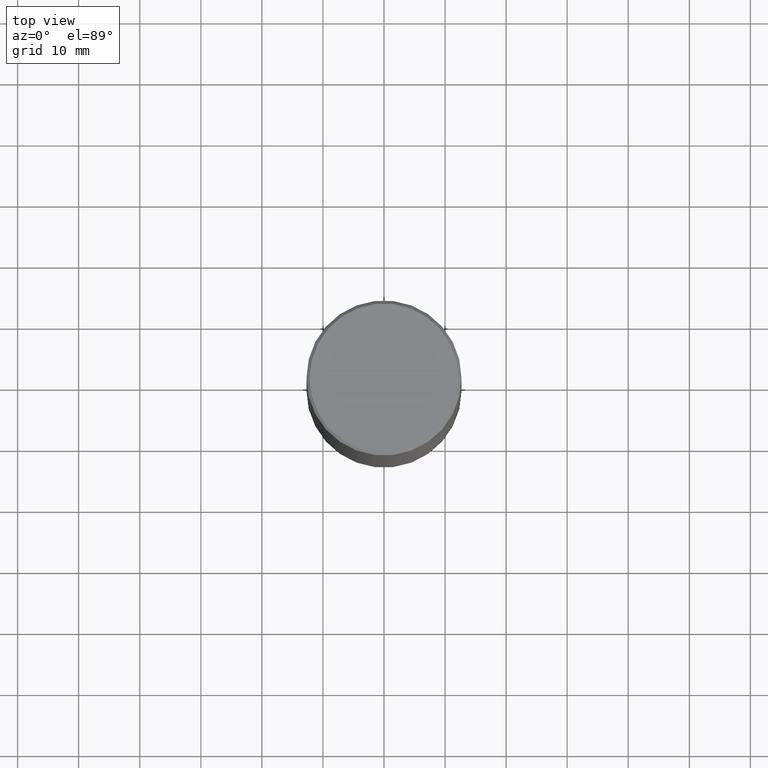
[diagram: clean part render]
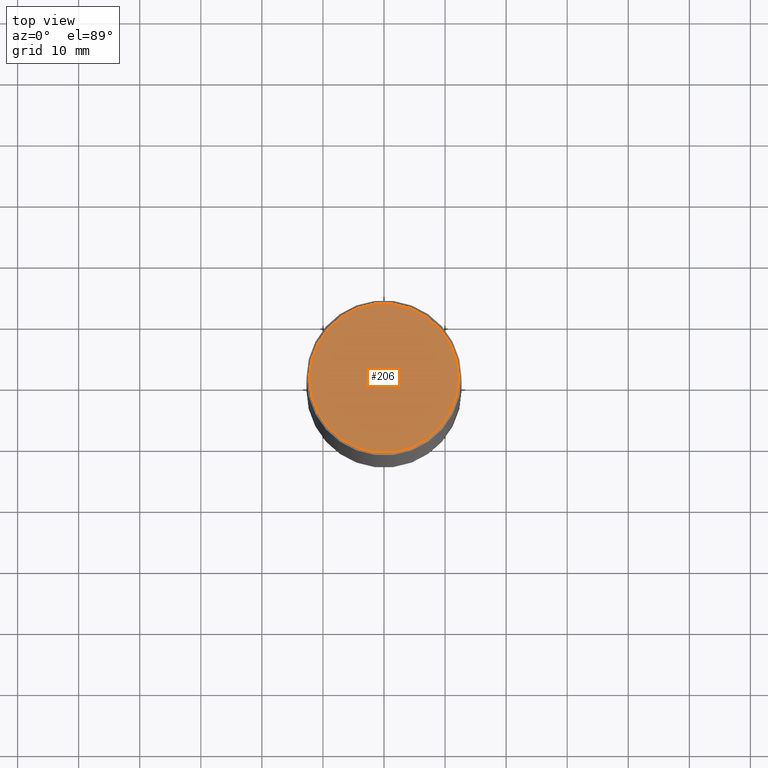
[diagram: same view with one face highlighted and labeled with its STEP entity id]
A machine part, top view. The second image highlights one B-rep face of the part: STEP entity #206.
In plain terms, the highlighted planar face has unit normal (0, -0, -1).
Its self-contained STEP definition (entity closure, byte-faithful):
#12 = EDGE_LOOP ( 'NONE', ( #17, #357 ) ) ;
#16 = CARTESIAN_POINT ( 'NONE',  ( -0.4799999999999996492, 3.386736898677836436E-15, 1.280553747027767124E-17 ) ) ;
#17 = ORIENTED_EDGE ( 'NONE', *, *, #171, .T. ) ;
#100 = CARTESIAN_POINT ( 'NONE',  ( -3.131554243005659264E-46, 4.471029511141341874E-32, 1.280553747030123384E-17 ) ) ;
#118 = EDGE_CURVE ( 'NONE', #148, #193, #354, .T. ) ;
#131 = CARTESIAN_POINT ( 'NONE',  ( -3.131554243005659264E-46, 4.471029511141341874E-32, 1.280553747030123384E-17 ) ) ;
#148 = VERTEX_POINT ( 'NONE', #326 ) ;
#163 = CIRCLE ( 'NONE', #250, 0.4799999999999996492 ) ;
#171 = EDGE_CURVE ( 'NONE', #193, #148, #163, .T. ) ;
#184 = DIRECTION ( 'NONE',  ( -1.000000000000000000, 6.982962677686265922E-15, -4.876176775795935793E-29 ) ) ;
#186 = DIRECTION ( 'NONE',  ( 1.000000000000000000, -6.982962677686267499E-15, 4.876036955247132767E-29 ) ) ;
#193 = VERTEX_POINT ( 'NONE', #16 ) ;
#195 = AXIS2_PLACEMENT_3D ( 'NONE', #100, #324, #288 ) ;
#206 = ADVANCED_FACE ( 'NONE', ( #264 ), #361, .F. ) ;
#241 = DIRECTION ( 'NONE',  ( 2.438088387897960049E-29, -3.491481338843145188E-15, -1.000000000000000000 ) ) ;
#243 = CARTESIAN_POINT ( 'NONE',  ( 3.351822085289405181E-15, 0.4799999999999996492, -1.669508273909558064E-15 ) ) ;
#250 = AXIS2_PLACEMENT_3D ( 'NONE', #131, #267, #186 ) ;
#264 = FACE_OUTER_BOUND ( 'NONE', #12, .T. ) ;
#267 = DIRECTION ( 'NONE',  ( -2.445468806185136597E-29, 3.491481338843145583E-15, 1.000000000000000000 ) ) ;
#288 = DIRECTION ( 'NONE',  ( 1.000000000000000000, -6.982962677686267499E-15, 4.876036955247132767E-29 ) ) ;
#294 = AXIS2_PLACEMENT_3D ( 'NONE', #243, #241, #184 ) ;
#324 = DIRECTION ( 'NONE',  ( -2.445468806185136597E-29, 3.491481338843145583E-15, 1.000000000000000000 ) ) ;
#326 = CARTESIAN_POINT ( 'NONE',  ( 0.4799999999999996492, -3.396558832296479732E-15, 1.280553747032483033E-17 ) ) ;
#354 = CIRCLE ( 'NONE', #195, 0.4799999999999996492 ) ;
#357 = ORIENTED_EDGE ( 'NONE', *, *, #118, .T. ) ;
#361 = PLANE ( 'NONE',  #294 ) ;